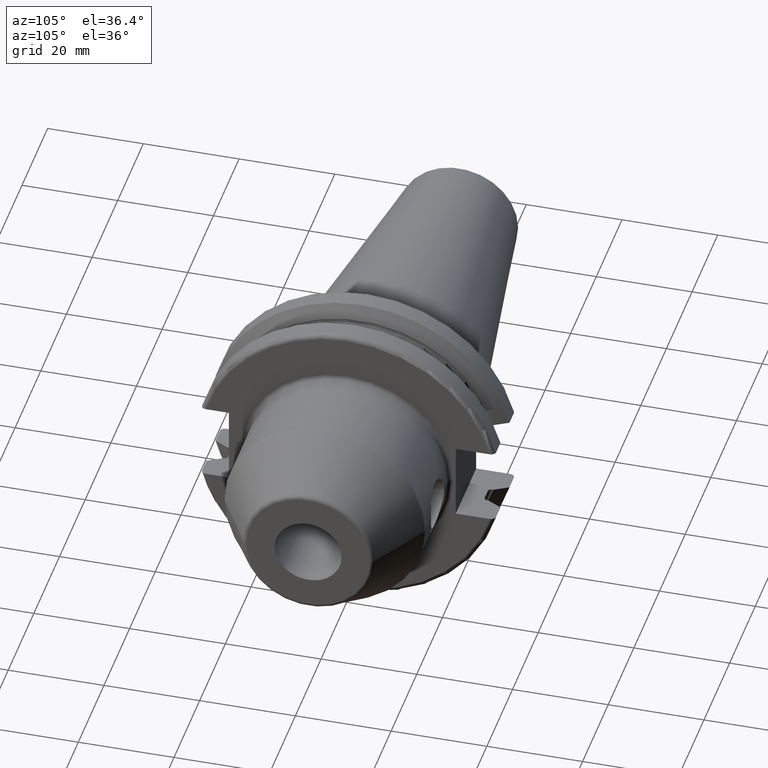
[diagram: clean part render]
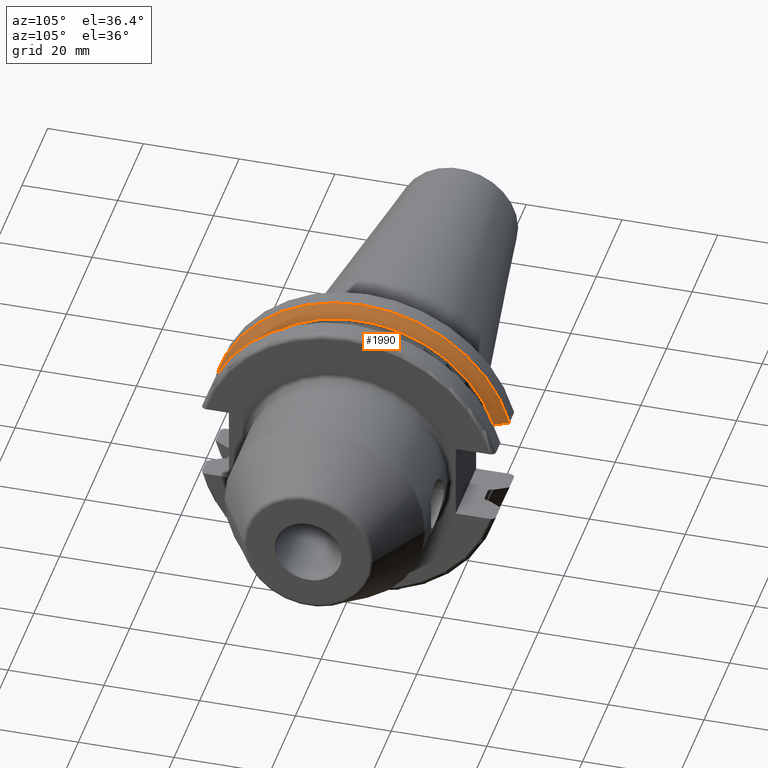
[diagram: same view with one face highlighted and labeled with its STEP entity id]
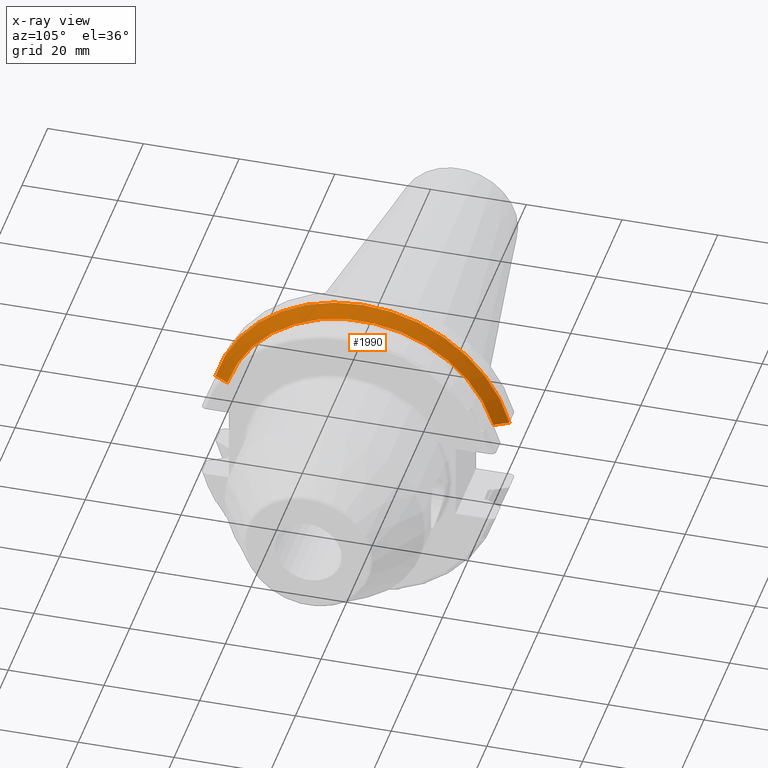
[diagram: x-ray of the same camera — body ghosted, the highlighted face saturated]
A machine part, auxiliary view. The second image highlights one B-rep face of the part: STEP entity #1990.
The next image is the same camera in x-ray: the body ghosted, the highlighted face saturated — about 0% of this face is hidden behind the body in this view.
In plain terms, the highlighted conical surface has half-angle 60 deg.
Its self-contained STEP definition (entity closure, byte-faithful):
#238=CARTESIAN_POINT('',(9.2625E0,0.E0,0.E0));
#239=DIRECTION('',(1.E0,0.E0,0.E0));
#240=DIRECTION('',(0.E0,9.600957415706E-1,2.796715341576E-1));
#241=AXIS2_PLACEMENT_3D('',#238,#239,#240);
#269=CARTESIAN_POINT('',(7.645946479578E0,3.071231684927E1,8.1E0));
#270=CARTESIAN_POINT('',(7.831754864835E0,3.037948258059E1,8.1E0));
#271=CARTESIAN_POINT('',(8.199252814970E0,2.972048825911E1,8.1E0));
#272=CARTESIAN_POINT('',(8.738047920141E0,2.875212438619E1,8.1E0));
#273=CARTESIAN_POINT('',(9.089058006747E0,2.811971443922E1,8.1E0));
#274=CARTESIAN_POINT('',(9.2625E0,2.780681820245E1,8.1E0));
#276=CARTESIAN_POINT('',(9.2625E0,-2.780681820245E1,8.1E0));
#277=CARTESIAN_POINT('',(9.089138247115E0,-2.811956968242E1,8.1E0));
#278=CARTESIAN_POINT('',(8.738235514848E0,-2.875178670793E1,8.1E0));
#279=CARTESIAN_POINT('',(8.199445066245E0,-2.972014324708E1,8.1E0));
#280=CARTESIAN_POINT('',(7.831837395590E0,-3.037933474515E1,8.1E0));
#281=CARTESIAN_POINT('',(7.645946479578E0,-3.071231684927E1,8.1E0));
#416=CARTESIAN_POINT('',(7.645946479578E0,0.E0,0.E0));
#417=DIRECTION('',(1.E0,0.E0,0.E0));
#418=DIRECTION('',(0.E0,9.669363825036E-1,2.550177095632E-1));
#419=AXIS2_PLACEMENT_3D('',#416,#417,#418);
#1404=CARTESIAN_POINT('',(9.2625E0,2.780681820245E1,8.1E0));
#1406=VERTEX_POINT('',#1404);
#1416=CARTESIAN_POINT('',(9.2625E0,-2.780681820245E1,8.1E0));
#1418=VERTEX_POINT('',#1416);
#1458=VERTEX_POINT('',#269);
#1459=VERTEX_POINT('',#281);
#1977=CARTESIAN_POINT('',(8.454223239789E0,0.E0,0.E0));
#1978=DIRECTION('',(-1.E0,0.E0,0.E0));
#1979=DIRECTION('',(0.E0,1.E0,0.E0));
#1980=AXIS2_PLACEMENT_3D('',#1977,#1978,#1979);
#1981=CONICAL_SURFACE('',#1980,3.036252358474E1,6.E1);
#1982=ORIENTED_EDGE('',*,*,#1950,.T.);
#1983=ORIENTED_EDGE('',*,*,#1909,.T.);
#1985=ORIENTED_EDGE('',*,*,#1984,.T.);
#1987=ORIENTED_EDGE('',*,*,#1986,.F.);
#1988=EDGE_LOOP('',(#1982,#1983,#1985,#1987));
#1989=FACE_OUTER_BOUND('',#1988,.F.);
#1990=ADVANCED_FACE('',(#1989),#1981,.T.);
#242=CIRCLE('',#241,2.896254716948E1);
#275=B_SPLINE_CURVE_WITH_KNOTS('',3,(#269,#270,#271,#272,#273,#274),
.UNSPECIFIED.,.F.,.F.,(4,1,1,4),(0.E0,3.333333333333E-1,6.666666666667E-1,1.E0),
.UNSPECIFIED.);
#282=B_SPLINE_CURVE_WITH_KNOTS('',3,(#276,#277,#278,#279,#280,#281),
.UNSPECIFIED.,.F.,.F.,(4,1,1,4),(0.E0,3.333333333333E-1,6.666666666667E-1,1.E0),
.UNSPECIFIED.);
#420=CIRCLE('',#419,3.17625E1);
#1909=EDGE_CURVE('',#1406,#1418,#242,.T.);
#1950=EDGE_CURVE('',#1458,#1406,#275,.T.);
#1984=EDGE_CURVE('',#1418,#1459,#282,.T.);
#1986=EDGE_CURVE('',#1458,#1459,#420,.T.);